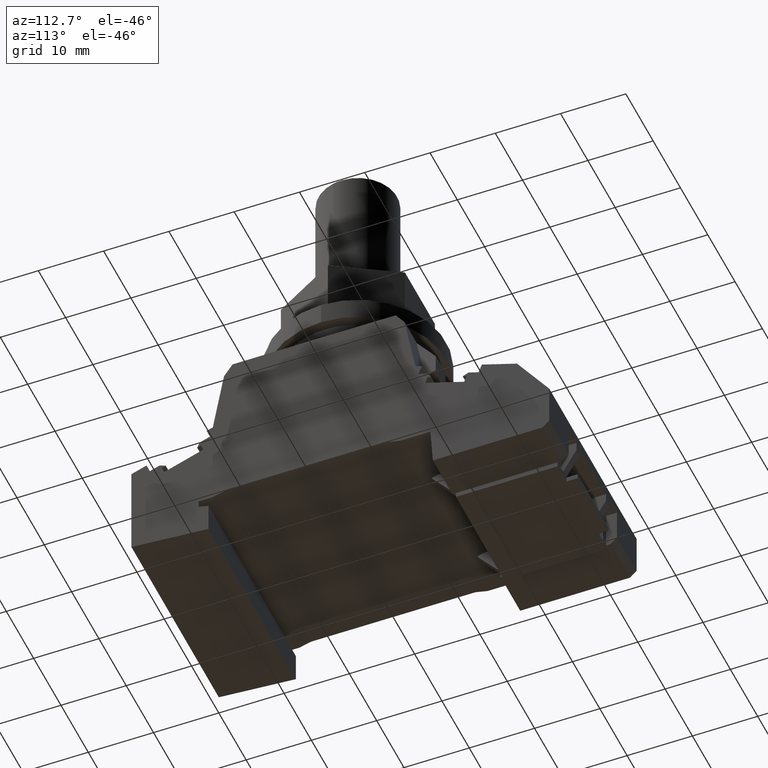
[diagram: clean part render]
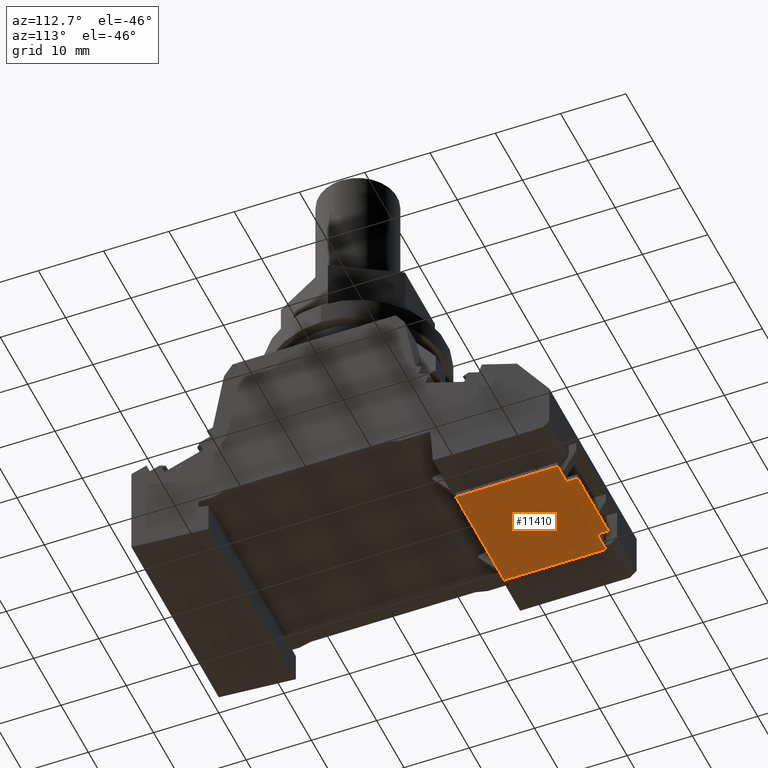
[diagram: same view with one face highlighted and labeled with its STEP entity id]
A machine part, auxiliary view. The second image highlights one B-rep face of the part: STEP entity #11410.
In plain terms, the highlighted planar face has unit normal (0, 0, 1).
Its self-contained STEP definition (entity closure, byte-faithful):
#9850=CARTESIAN_POINT('',(10.3999998241244,63.999999263537,
9.30810983845731E-12));
#9860=VERTEX_POINT('',#9850);
#9890=CARTESIAN_POINT('',(-89.7753396327511,63.999999263537,
9.94120341601956E-11));
#9900=DIRECTION('',(1.,4.68674043851448E-17,-8.99463983744699E-13));
#9910=VECTOR('',#9900,1.);
#9920=LINE('',#9890,#9910);
#9930=CARTESIAN_POINT('',(21.5999998241244,63.999999263537,
-7.67386154620908E-13));
#9940=VERTEX_POINT('',#9930);
#9950=EDGE_CURVE('',#9860,#9940,#9920,.T.);
#10790=CARTESIAN_POINT('',(-7.34701188775944E-12,46.5999992326603,
1.987388031921E-11));
#10800=DIRECTION('',(8.99463983744699E-13,6.97637027173827E-14,1.));
#10810=DIRECTION('',(4.68674044479508E-17,-1.,6.97637027173827E-14));
#10820=AXIS2_PLACEMENT_3D('',#10790,#10800,#10810);
#10830=PLANE('',#10820);
#10840=CARTESIAN_POINT('',(-89.7753396327534,62.2999981275436,
9.95328264252748E-11));
#10850=DIRECTION('',(-1.,-1.12279689966336E-8,8.9946398452919E-13));
#10860=VECTOR('',#10850,1.);
#10870=LINE('',#10840,#10860);
#10880=CARTESIAN_POINT('',(24.849999843212,62.2999994145534,
-3.5740299608733E-12));
#10890=VERTEX_POINT('',#10880);
#10900=CARTESIAN_POINT('',(21.599999843212,62.2999993780625,
-6.46593889541691E-13));
#10910=VERTEX_POINT('',#10900);
#10920=EDGE_CURVE('',#10890,#10910,#10870,.T.);
#10930=ORIENTED_EDGE('',*,*,#10920,.F.);
#10940=CARTESIAN_POINT('',(21.6000008236037,-25.0169236945472,
5.44275735592237E-12));
#10950=DIRECTION('',(1.12279689966336E-8,-1.,6.97636926186143E-14));
#10960=VECTOR('',#10950,1.);
#10970=LINE('',#10940,#10960);
#10980=EDGE_CURVE('',#9940,#10910,#10970,.T.);
#10990=ORIENTED_EDGE('',*,*,#10980,.T.);
#11000=ORIENTED_EDGE('',*,*,#9950,.T.);
#11010=CARTESIAN_POINT('',(10.4000008236037,-25.0169236945322,
1.55182533490006E-11));
#11020=DIRECTION('',(-1.12279689966336E-8,1.,-6.97636926186143E-14));
#11030=VECTOR('',#11020,1.);
#11040=LINE('',#11010,#11030);
#11050=CARTESIAN_POINT('',(10.399999843212,62.2999992523092,
9.42890210353653E-12));
#11060=VERTEX_POINT('',#11050);
#11070=EDGE_CURVE('',#11060,#9860,#11040,.T.);
#11080=ORIENTED_EDGE('',*,*,#11070,.T.);
#11090=CARTESIAN_POINT('',(-89.7753396327534,62.2999981275436,
9.95328264252748E-11));
#11100=DIRECTION('',(-1.,-1.12279689966336E-8,8.9946398452919E-13));
#11110=VECTOR('',#11100,1.);
#11120=LINE('',#11090,#11110);
#11130=CARTESIAN_POINT('',(7.14999984321199,62.2999992158183,
1.23492327475105E-11));
#11140=VERTEX_POINT('',#11130);
#11150=EDGE_CURVE('',#11060,#11140,#11120,.T.);
#11160=ORIENTED_EDGE('',*,*,#11150,.F.);
#11170=CARTESIAN_POINT('',(7.1500008236037,-25.0169236945279,
1.84385839929746E-11));
#11180=DIRECTION('',(1.12279689966336E-8,-1.,6.97636926186143E-14));
#11190=VECTOR('',#11180,1.);
#11200=LINE('',#11170,#11190);
#11210=CARTESIAN_POINT('',(7.1500000183683,46.6999992158183,
1.34363631332235E-11));
#11220=VERTEX_POINT('',#11210);
#11230=EDGE_CURVE('',#11140,#11220,#11200,.T.);
#11240=ORIENTED_EDGE('',*,*,#11230,.F.);
#11250=CARTESIAN_POINT('',(-89.7753396327743,46.6999981275436,
1.00619956810988E-10));
#11260=DIRECTION('',(1.,1.12279690966336E-8,-8.9946398452919E-13));
#11270=VECTOR('',#11260,1.);
#11280=LINE('',#11250,#11270);
#11290=CARTESIAN_POINT('',(24.8500000183683,46.6999994145534,
-2.48689957516035E-12));
#11300=VERTEX_POINT('',#11290);
#11310=EDGE_CURVE('',#11220,#11300,#11280,.T.);
#11320=ORIENTED_EDGE('',*,*,#11310,.F.);
#11330=CARTESIAN_POINT('',(24.8500008236037,-25.0169236945516,
2.51532128459075E-12));
#11340=DIRECTION('',(-1.12279689966336E-8,1.,-6.97636926186143E-14));
#11350=VECTOR('',#11340,1.);
#11360=LINE('',#11330,#11350);
#11370=EDGE_CURVE('',#11300,#10890,#11360,.T.);
#11380=ORIENTED_EDGE('',*,*,#11370,.F.);
#11390=EDGE_LOOP('',(#11380,#11320,#11240,#11160,#11080,#11000,#10990,
#10930));
#11400=FACE_OUTER_BOUND('',#11390,.T.);
#11410=ADVANCED_FACE('',(#11400),#10830,.F.);